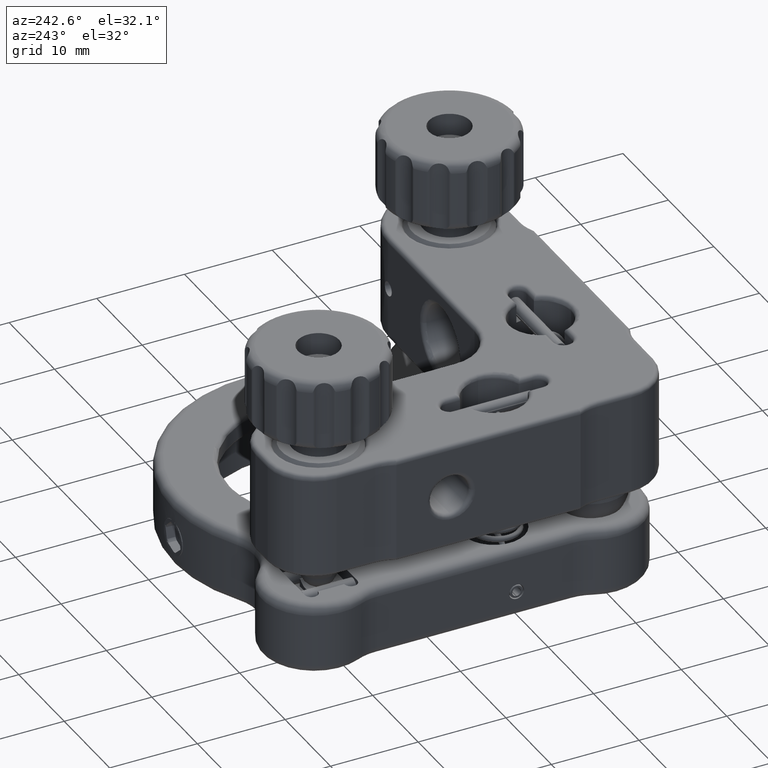
[diagram: clean part render]
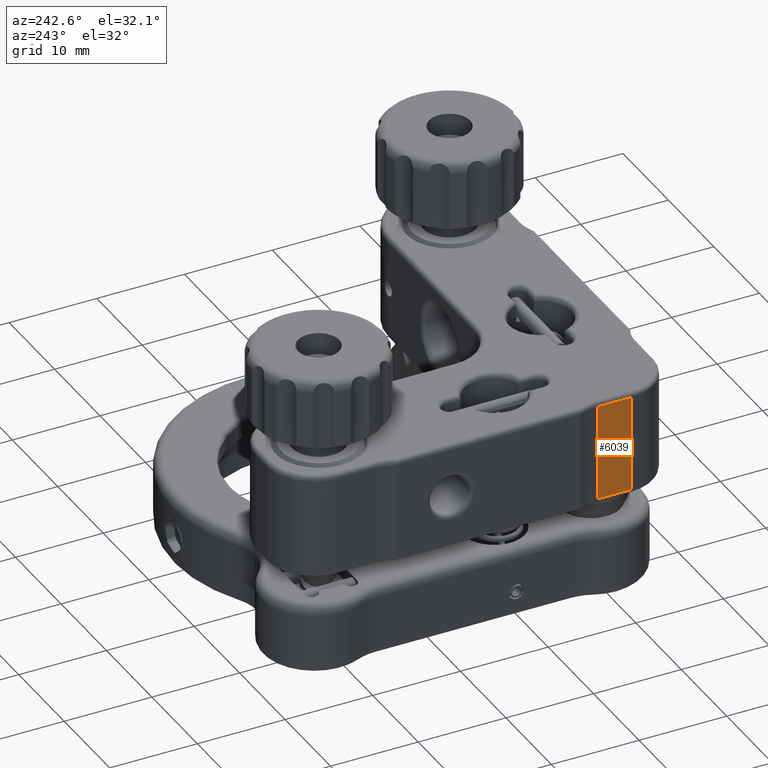
[diagram: same view with one face highlighted and labeled with its STEP entity id]
A machine part, auxiliary view. The second image highlights one B-rep face of the part: STEP entity #6039.
In plain terms, the highlighted planar face has unit normal (1, -0, 0).
Its self-contained STEP definition (entity closure, byte-faithful):
#6 = DIRECTION ( 'NONE',  ( -2.352032944881132548E-49, 1.000000000000000000, -4.632058481800215890E-17 ) ) ;
#1083 = VERTEX_POINT ( 'NONE', #4434 ) ;
#1676 = LINE ( 'NONE', #3458, #18984 ) ;
#1866 = CARTESIAN_POINT ( 'NONE',  ( -6.500000000000021316, 2.570550528229628817, 6.000000000000000000 ) ) ;
#2155 = AXIS2_PLACEMENT_3D ( 'NONE', #22458, #20792, #11007 ) ;
#3416 = VECTOR ( 'NONE', #9596, 1000.000000000000000 ) ;
#3458 = CARTESIAN_POINT ( 'NONE',  ( -6.500000000000021316, -1.322875655532300687, -5.500000000000000000 ) ) ;
#4434 = CARTESIAN_POINT ( 'NONE',  ( -6.500000000000021316, -1.322875655532300687, -5.500000000000000000 ) ) ;
#4731 = CARTESIAN_POINT ( 'NONE',  ( -6.500000000000021316, 2.570550528229628817, 5.500000000000000000 ) ) ;
#6039 = ADVANCED_FACE ( 'NONE', ( #15057 ), #22817, .F. ) ;
#8360 = ORIENTED_EDGE ( 'NONE', *, *, #10975, .T. ) ;
#8454 = ORIENTED_EDGE ( 'NONE', *, *, #9649, .T. ) ;
#8654 = VECTOR ( 'NONE', #6, 1000.000000000000000 ) ;
#8822 = EDGE_LOOP ( 'NONE', ( #24759, #8454, #8360, #14624 ) ) ;
#9596 = DIRECTION ( 'NONE',  ( 1.533343436975556833E-17, -8.970190802864523530E-17, -1.000000000000000000 ) ) ;
#9649 = EDGE_CURVE ( 'NONE', #10294, #13219, #11302, .T. ) ;
#10294 = VERTEX_POINT ( 'NONE', #10533 ) ;
#10533 = CARTESIAN_POINT ( 'NONE',  ( -6.500000000000021316, -1.322875655532299799, 5.500000000000000000 ) ) ;
#10975 = EDGE_CURVE ( 'NONE', #13219, #14991, #21158, .T. ) ;
#11007 = DIRECTION ( 'NONE',  ( -1.533343436975556833E-17, 8.970190802864523530E-17, 1.000000000000000000 ) ) ;
#11302 = LINE ( 'NONE', #19311, #8654 ) ;
#13219 = VERTEX_POINT ( 'NONE', #4731 ) ;
#13328 = EDGE_CURVE ( 'NONE', #14991, #1083, #1676, .T. ) ;
#14624 = ORIENTED_EDGE ( 'NONE', *, *, #13328, .T. ) ;
#14638 = CARTESIAN_POINT ( 'NONE',  ( -6.500000000000021316, -1.322875655532299799, 6.000000000000000000 ) ) ;
#14777 = DIRECTION ( 'NONE',  ( -1.533343436975556833E-17, 8.970190802864523530E-17, 1.000000000000000000 ) ) ;
#14991 = VERTEX_POINT ( 'NONE', #24476 ) ;
#15005 = LINE ( 'NONE', #14638, #24511 ) ;
#15057 = FACE_OUTER_BOUND ( 'NONE', #8822, .T. ) ;
#18984 = VECTOR ( 'NONE', #20613, 1000.000000000000000 ) ;
#19311 = CARTESIAN_POINT ( 'NONE',  ( -6.500000000000021316, -2.598076211353288478, 5.500000000000000000 ) ) ;
#20613 = DIRECTION ( 'NONE',  ( 2.352032944881132548E-49, -1.000000000000000000, 4.632058481800215890E-17 ) ) ;
#20792 = DIRECTION ( 'NONE',  ( 1.000000000000000000, -1.110223024625156294E-16, 1.533343436975557757E-17 ) ) ;
#21158 = LINE ( 'NONE', #1866, #3416 ) ;
#22458 = CARTESIAN_POINT ( 'NONE',  ( -6.500000000000021316, -2.598076211353288478, 6.000000000000000000 ) ) ;
#22817 = PLANE ( 'NONE',  #2155 ) ;
#23473 = EDGE_CURVE ( 'NONE', #1083, #10294, #15005, .T. ) ;
#24476 = CARTESIAN_POINT ( 'NONE',  ( -6.500000000000021316, 2.570550528229627929, -5.500000000000000000 ) ) ;
#24511 = VECTOR ( 'NONE', #14777, 1000.000000000000000 ) ;
#24759 = ORIENTED_EDGE ( 'NONE', *, *, #23473, .T. ) ;